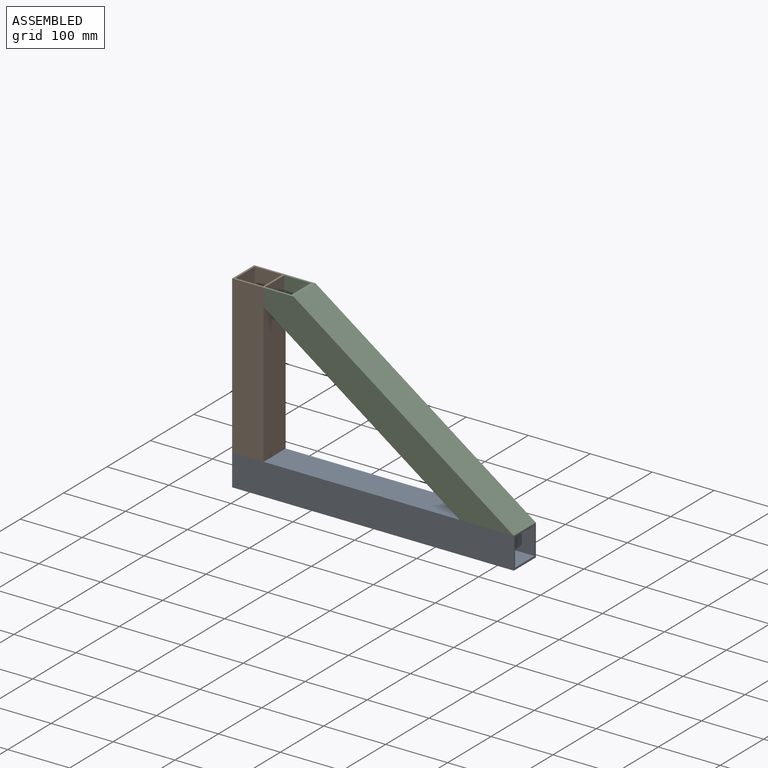
[diagram: assembled view]
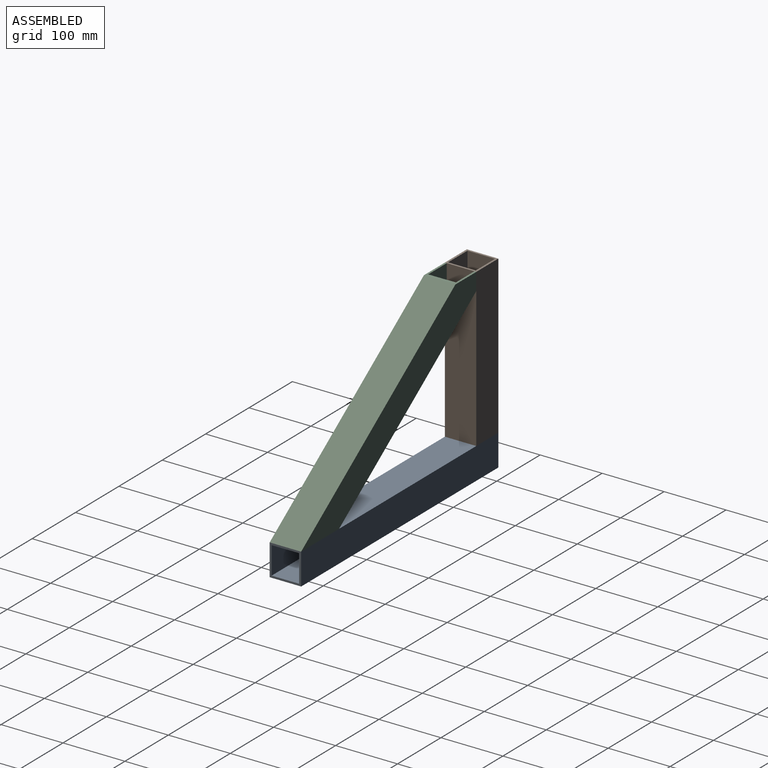
[diagram: assembled view, second angle]
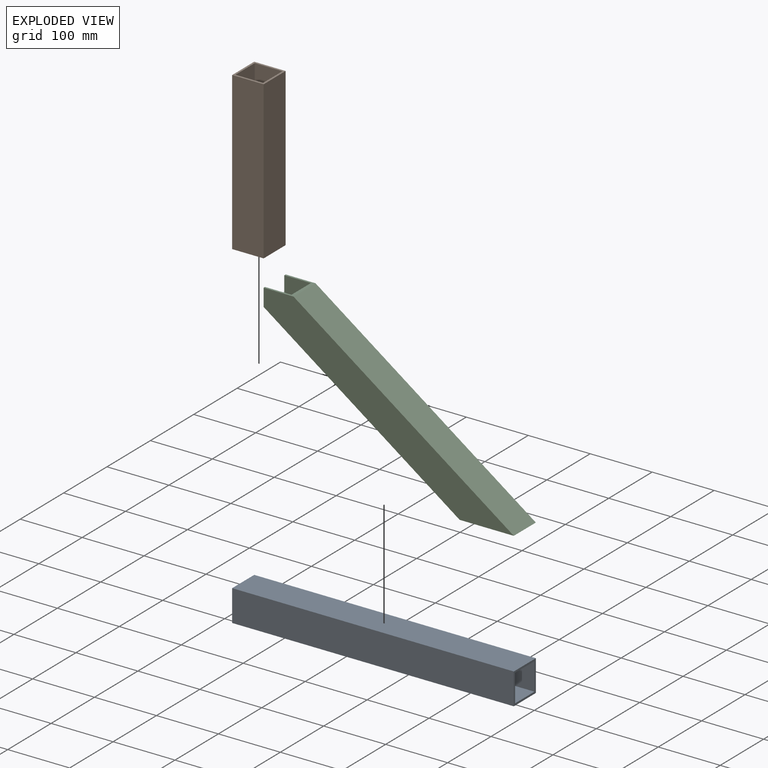
[diagram: exploded view]
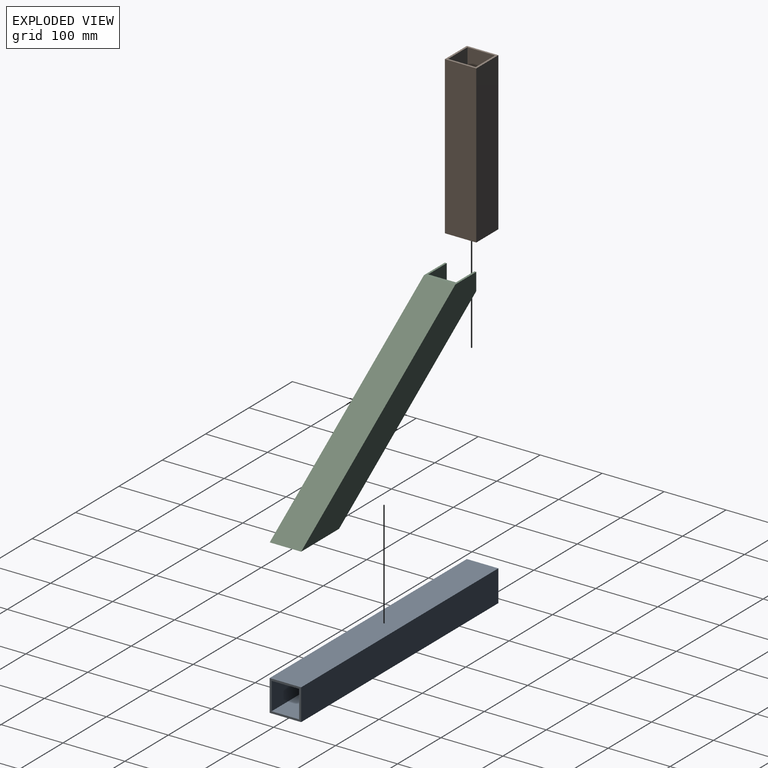
[diagram: exploded view, second angle]
ASSEMBLY  parts=3 mates=2
PART A: 10 faces, bbox 454.6x50.8x50.8 mm
  f0: plane 50.8x50.8mm, normal (1,0,0), area 604.8mm2, adj f2,f3,f4,f5,f6,f7,f8,f9
  f1: plane 50.8x50.8mm, normal (-1,0,0), area 604.8mm2, adj f2,f3,f4,f5,f6,f7,f8,f9
  f2: plane 454.58x50.8mm, normal (0,1,0), area 23092.9mm2, adj f0,f1,f4,f5
  f3: plane 454.58x50.8mm, normal (0,-1,0), area 23092.9mm2, adj f0,f1,f4,f5
  f4: plane 454.58x50.8mm, normal (0,0,1), area 23092.9mm2, adj f0,f1,f2,f3
  f5: plane 454.58x50.8mm, normal (0,0,-1), area 23092.9mm2, adj f0,f1,f2,f3
  f6: plane 454.58x44.45mm, normal (0,0,1), area 20206.2mm2, adj f0,f1,f7,f9
  f7: plane 454.58x44.45mm, normal (0,-1,0), area 20206.2mm2, adj f0,f1,f6,f8
  f8: plane 454.58x44.45mm, normal (0,0,-1), area 20206.2mm2, adj f0,f1,f7,f9
  f9: plane 454.58x44.45mm, normal (0,1,0), area 20206.2mm2, adj f0,f1,f6,f8
PART B: 10 faces, bbox 50.8x50.8x254 mm
  f0: plane 254x50.8mm, normal (0,1,0), area 12903.2mm2, adj f1,f7,f8,f9
  f1: plane 254x50.8mm, normal (-1,0,0), area 12903.2mm2, adj f0,f2,f8,f9
  f2: plane 254x50.8mm, normal (0,-1,0), area 12903.2mm2, adj f1,f7,f8,f9
  f3: plane 254x44.45mm, normal (0,-1,0), area 11290.3mm2, adj f4,f6,f8,f9
  f4: plane 254x44.45mm, normal (-1,0,0), area 11290.3mm2, adj f3,f5,f8,f9
  f5: plane 254x44.45mm, normal (0,1,0), area 11290.3mm2, adj f4,f6,f8,f9
  f6: plane 254x44.45mm, normal (1,0,0), area 11290.3mm2, adj f3,f5,f8,f9
  f7: plane 254x50.8mm, normal (1,0,0), area 12903.2mm2, adj f0,f2,f8,f9
  f8: plane 50.8x50.8mm, normal (0,0,1), area 604.8mm2, adj f0,f1,f2,f3,f4,f5,f6,f7
  f9: plane 50.8x50.8mm, normal (0,0,-1), area 604.8mm2, adj f0,f1,f2,f3,f4,f5,f6,f7
PART C: 11 faces, bbox 456.4x157.1x50.8 mm
  f0: plane 456.4x157.12mm, normal (0,0,1), area 21650.3mm2, adj f6,f7,f8,f9,f10
  f1: plane 456.4x157.12mm, normal (0,0,-1), area 21650.3mm2, adj f6,f7,f8,f9,f10
  f2: plane 384.52x92.65mm, normal (-0.23,0.97,0), area 17580.9mm2, adj f4,f5,f7,f10
  f3: plane 424.84x102.37mm, normal (0.23,-0.97,0), area 19424.6mm2, adj f4,f5,f6,f10
  f4: plane 452.82x150.44mm, normal (0,0,-1), area 19017.7mm2, adj f2,f3,f6,f7,f10
  f5: plane 452.82x150.44mm, normal (0,0,1), area 19017.7mm2, adj f2,f3,f6,f7,f10
  f6: plane 50.8x36.41mm, normal (-0.76,0.65,0), area 548.8mm2, adj f0,f1,f3,f4,f5,f7,f9
  f7: plane 50.8x21.17mm, normal (-0.65,-0.76,0), area 351.3mm2, adj f0,f1,f2,f4,f5,f6,f8
  f8: plane 377.99x91.08mm, normal (0.23,-0.97,0), area 19751.4mm2, adj f0,f1,f7,f10
  f9: plane 424.84x102.37mm, normal (-0.23,0.97,0), area 22199.5mm2, adj f0,f1,f6,f10
  f10: plane 66.05x57.24mm, normal (0.76,-0.65,0), area 1040.6mm2, adj f0,f1,f2,f3,f4,f5,f8,f9
PLACE A rot(axis=(0.07,0.05,1),0deg) t=(-157.61,-55.48,211.27)mm
PLACE B rot(axis=(0.07,0.05,1),0deg) t=(-411.02,81.94,262.07)mm
PLACE C rot(axis=(0.84,0.38,-0.38),99.9deg) t=(-468.62,130.96,595.4)mm
MATE planar B.f8 <-> C.f6  axis (0,0,1) through (-423.07,80.16,516.07)mm
MATE planar A.f4 <-> B.f9  axis (0,0,1) through (-473.87,105.56,262.07)mm
